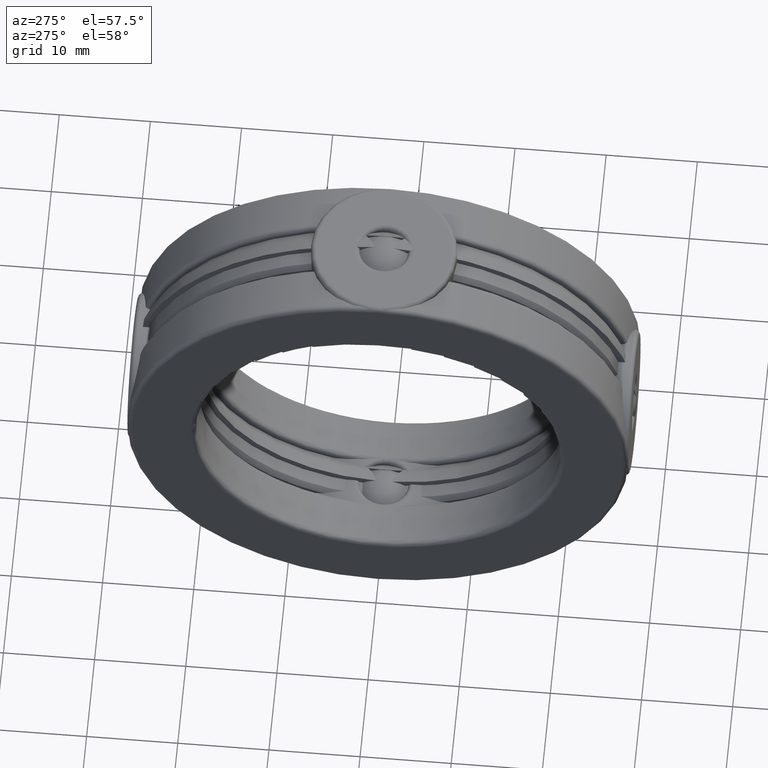
[diagram: clean part render]
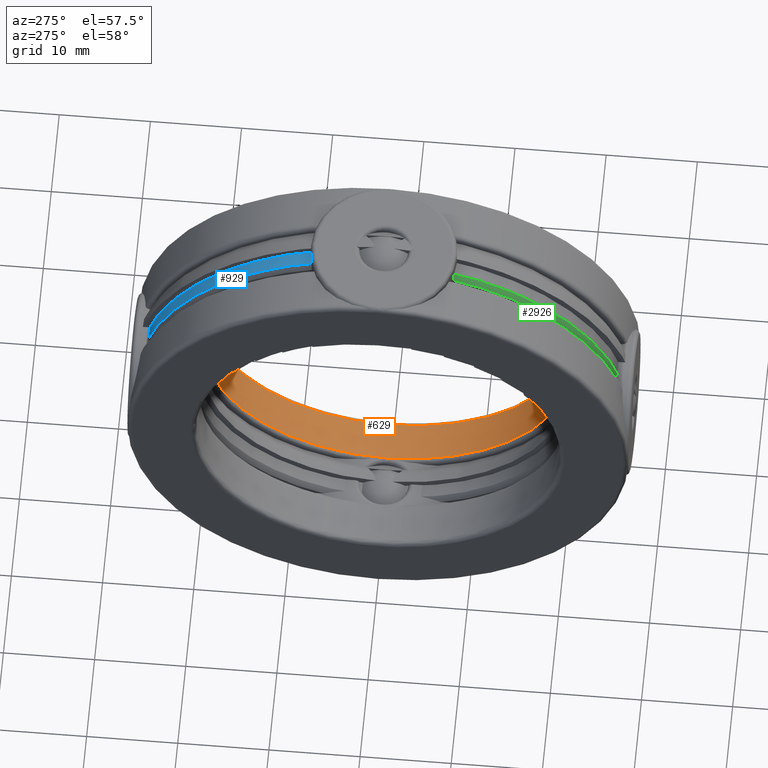
[diagram: same view with three faces highlighted in distinct colors, each labeled with its STEP entity id]
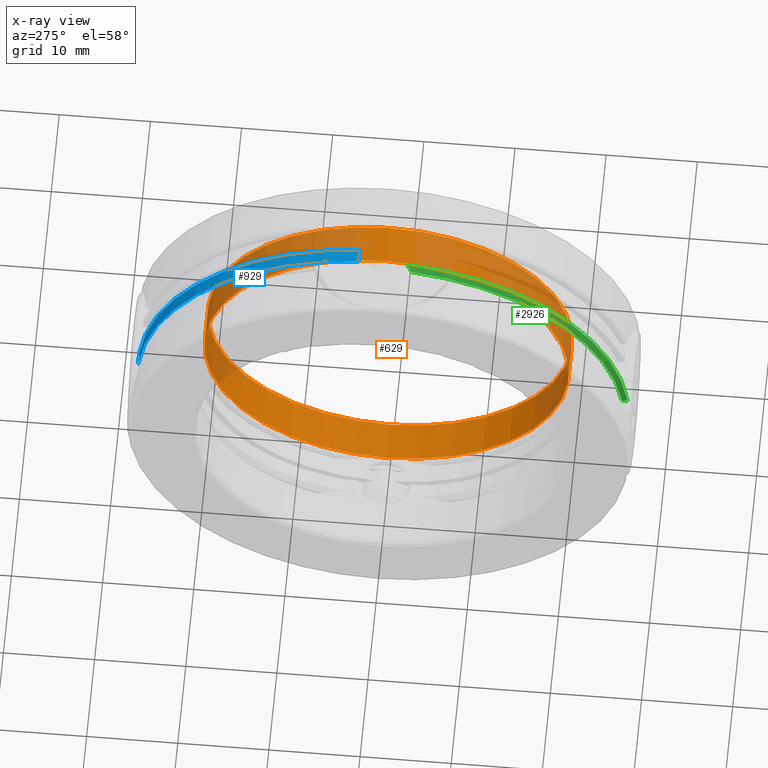
[diagram: x-ray of the same camera — body ghosted, the three highlighted faces saturated]
A machine part, auxiliary view with three faces highlighted in distinct colors.
The next image is the same camera in x-ray (body ghosted, the three faces saturated) — at least one of them is partly hidden behind the body in this view.
Their STEP definitions:

[orange] entity #629 — the highlighted cylindrical surface (bore or boss wall) has radius 20.0025 mm, axis along (-1, -0, -0).
#31 = DIRECTION ( 'NONE',  ( 0.0000000000000000000, 0.0000000000000000000, 1.000000000000000000 ) ) ;
#238 = CARTESIAN_POINT ( 'NONE',  ( 0.2950000000000006000, 0.0000000000000000000, 0.0000000000000000000 ) ) ;
#445 = EDGE_LOOP ( 'NONE', ( #1779 ) ) ;
#463 = CIRCLE ( 'NONE', #2258, 0.7874999999999999800 ) ;
#524 = DIRECTION ( 'NONE',  ( -1.000000000000000000, -0.0000000000000000000, -0.0000000000000000000 ) ) ;
#538 = DIRECTION ( 'NONE',  ( 0.0000000000000000000, 0.0000000000000000000, 1.000000000000000000 ) ) ;
#627 = DIRECTION ( 'NONE',  ( 0.0000000000000000000, 0.0000000000000000000, 1.000000000000000000 ) ) ;
#629 = ADVANCED_FACE ( 'NONE', ( #1318, #2789 ), #742, .F. ) ;
#742 = CYLINDRICAL_SURFACE ( 'NONE', #2857, 0.7874999999999999800 ) ;
#751 = CARTESIAN_POINT ( 'NONE',  ( 0.0000000000000000000, 0.0000000000000000000, 0.0000000000000000000 ) ) ;
#1177 = VERTEX_POINT ( 'NONE', #1813 ) ;
#1318 = FACE_OUTER_BOUND ( 'NONE', #445, .T. ) ;
#1532 = CARTESIAN_POINT ( 'NONE',  ( 0.1250021000000005300, 0.0000000000000000000, 0.0000000000000000000 ) ) ;
#1653 = EDGE_CURVE ( 'NONE', #2914, #2914, #463, .T. ) ;
#1771 = DIRECTION ( 'NONE',  ( -1.000000000000000000, -0.0000000000000000000, -0.0000000000000000000 ) ) ;
#1779 = ORIENTED_EDGE ( 'NONE', *, *, #1653, .T. ) ;
#1783 = CARTESIAN_POINT ( 'NONE',  ( 0.1250021000000005300, 0.0000000000000000000, 0.7874999999999999800 ) ) ;
#1813 = CARTESIAN_POINT ( 'NONE',  ( 0.2950000000000006000, 0.0000000000000000000, 0.7874999999999999800 ) ) ;
#1819 = CIRCLE ( 'NONE', #2628, 0.7874999999999999800 ) ;
#2240 = DIRECTION ( 'NONE',  ( -1.000000000000000000, -0.0000000000000000000, -0.0000000000000000000 ) ) ;
#2258 = AXIS2_PLACEMENT_3D ( 'NONE', #1532, #1771, #31 ) ;
#2325 = EDGE_CURVE ( 'NONE', #1177, #1177, #1819, .T. ) ;
#2532 = ORIENTED_EDGE ( 'NONE', *, *, #2325, .F. ) ;
#2628 = AXIS2_PLACEMENT_3D ( 'NONE', #238, #2240, #627 ) ;
#2789 = FACE_OUTER_BOUND ( 'NONE', #2853, .T. ) ;
#2853 = EDGE_LOOP ( 'NONE', ( #2532 ) ) ;
#2857 = AXIS2_PLACEMENT_3D ( 'NONE', #751, #524, #538 ) ;
#2914 = VERTEX_POINT ( 'NONE', #1783 ) ;

[blue] entity #929 — the highlighted cylindrical surface (partial cylindrical patch) has radius 26.9875 mm, axis along (-1, -0, -0).
#6 = EDGE_CURVE ( 'NONE', #2019, #2568, #109, .T. ) ;
#17 = DIRECTION ( 'NONE',  ( -1.000000000000000000, -0.0000000000000000000, -0.0000000000000000000 ) ) ;
#109 = LINE ( 'NONE', #443, #1802 ) ;
#111 = EDGE_CURVE ( 'NONE', #2568, #2550, #2105, .T. ) ;
#163 = CARTESIAN_POINT ( 'NONE',  ( -0.05875000000000001100, 0.1046707168665492300, 1.057331684491977600 ) ) ;
#210 = AXIS2_PLACEMENT_3D ( 'NONE', #1421, #410, #3127 ) ;
#234 = EDGE_CURVE ( 'NONE', #2550, #2701, #2408, .T. ) ;
#390 = CARTESIAN_POINT ( 'NONE',  ( 0.0000000000000000000, 0.1046707168665485100, 1.057331684491977600 ) ) ;
#410 = DIRECTION ( 'NONE',  ( -1.000000000000000000, -0.0000000000000000000, -0.0000000000000000000 ) ) ;
#431 = DIRECTION ( 'NONE',  ( 0.0000000000000000000, 0.0000000000000000000, 1.000000000000000000 ) ) ;
#443 = CARTESIAN_POINT ( 'NONE',  ( -0.02937500000000000500, 0.1046707168665493000, 1.057331684491977600 ) ) ;
#776 = CARTESIAN_POINT ( 'NONE',  ( -0.05875000000000001100, 1.057331684491978700, 0.1046707168665382800 ) ) ;
#801 = AXIS2_PLACEMENT_3D ( 'NONE', #1268, #17, #1480 ) ;
#929 = ADVANCED_FACE ( 'NONE', ( #2332 ), #1711, .T. ) ;
#1114 = CIRCLE ( 'NONE', #210, 1.062500000000000000 ) ;
#1178 = CARTESIAN_POINT ( 'NONE',  ( 0.0000000000000000000, 1.057331684491978700, 0.1046707168665378700 ) ) ;
#1225 = ORIENTED_EDGE ( 'NONE', *, *, #234, .T. ) ;
#1268 = CARTESIAN_POINT ( 'NONE',  ( 0.0000000000000000000, 0.0000000000000000000, 0.0000000000000000000 ) ) ;
#1270 = AXIS2_PLACEMENT_3D ( 'NONE', #3143, #1943, #431 ) ;
#1421 = CARTESIAN_POINT ( 'NONE',  ( -0.05875000000000001100, 0.0000000000000000000, 0.0000000000000000000 ) ) ;
#1480 = DIRECTION ( 'NONE',  ( 0.0000000000000000000, 0.0000000000000000000, 1.000000000000000000 ) ) ;
#1539 = ORIENTED_EDGE ( 'NONE', *, *, #3122, .F. ) ;
#1705 = ORIENTED_EDGE ( 'NONE', *, *, #111, .T. ) ;
#1711 = CYLINDRICAL_SURFACE ( 'NONE', #1270, 1.062500000000000000 ) ;
#1802 = VECTOR ( 'NONE', #2185, 39.37007874015748100 ) ;
#1931 = ORIENTED_EDGE ( 'NONE', *, *, #6, .T. ) ;
#1943 = DIRECTION ( 'NONE',  ( -1.000000000000000000, -0.0000000000000000000, -0.0000000000000000000 ) ) ;
#2019 = VERTEX_POINT ( 'NONE', #163 ) ;
#2105 = CIRCLE ( 'NONE', #801, 1.062500000000000000 ) ;
#2185 = DIRECTION ( 'NONE',  ( 1.000000000000000000, -0.0000000000000000000, 0.0000000000000000000 ) ) ;
#2332 = FACE_OUTER_BOUND ( 'NONE', #2872, .T. ) ;
#2408 = LINE ( 'NONE', #3078, #2492 ) ;
#2492 = VECTOR ( 'NONE', #2763, 39.37007874015748100 ) ;
#2550 = VERTEX_POINT ( 'NONE', #1178 ) ;
#2568 = VERTEX_POINT ( 'NONE', #390 ) ;
#2701 = VERTEX_POINT ( 'NONE', #776 ) ;
#2763 = DIRECTION ( 'NONE',  ( -1.000000000000000000, -0.0000000000000000000, -0.0000000000000000000 ) ) ;
#2872 = EDGE_LOOP ( 'NONE', ( #1931, #1705, #1225, #1539 ) ) ;
#3078 = CARTESIAN_POINT ( 'NONE',  ( -0.02937500000000000500, 1.057331684491978700, 0.1046707168665382100 ) ) ;
#3122 = EDGE_CURVE ( 'NONE', #2019, #2701, #1114, .T. ) ;
#3127 = DIRECTION ( 'NONE',  ( 0.0000000000000000000, 0.0000000000000000000, 1.000000000000000000 ) ) ;
#3143 = CARTESIAN_POINT ( 'NONE',  ( 0.0000000000000000000, 0.0000000000000000000, 0.0000000000000000000 ) ) ;

[green] entity #2926 — the highlighted conical surface has half-angle 45 deg.
#164 = ORIENTED_EDGE ( 'NONE', *, *, #2100, .T. ) ;
#351 = B_SPLINE_CURVE_WITH_KNOTS ( 'NONE', 3,
 ( #3188, #2957, #2703, #1997 ),
 .UNSPECIFIED., .F., .F.,
 ( 4, 4 ),
 ( 3.460593685213387700E-007, 0.0009424222587522962200 ),
 .UNSPECIFIED. ) ;
#360 = ORIENTED_EDGE ( 'NONE', *, *, #2225, .T. ) ;
#417 = EDGE_LOOP ( 'NONE', ( #164, #3197, #360, #1818 ) ) ;
#471 = CIRCLE ( 'NONE', #2765, 1.042500000000000000 ) ;
#520 = CARTESIAN_POINT ( 'NONE',  ( -0.05875000000000001100, -0.1046707168665272100, 1.057331684491979800 ) ) ;
#523 = DIRECTION ( 'NONE',  ( 0.0000000000000000000, 0.0000000000000000000, 1.000000000000000000 ) ) ;
#636 = CARTESIAN_POINT ( 'NONE',  ( -0.07875000000000002800, 0.0000000000000000000, 0.0000000000000000000 ) ) ;
#658 = DIRECTION ( 'NONE',  ( 0.0000000000000000000, 0.0000000000000000000, 1.000000000000000000 ) ) ;
#727 = CARTESIAN_POINT ( 'NONE',  ( -0.07875000000000007000, -0.1263222224675388800, 1.034818315508022600 ) ) ;
#799 = EDGE_CURVE ( 'NONE', #1644, #1117, #471, .T. ) ;
#877 = CARTESIAN_POINT ( 'NONE',  ( -0.05875000000000001100, -1.057331684491978700, 0.1046707168665381600 ) ) ;
#899 = CARTESIAN_POINT ( 'NONE',  ( -0.07875000000000002800, 0.0000000000000000000, 0.0000000000000000000 ) ) ;
#924 = CARTESIAN_POINT ( 'NONE',  ( -0.06491833212923744900, -0.1128628845874553600, 1.050322216163300800 ) ) ;
#1117 = VERTEX_POINT ( 'NONE', #1254 ) ;
#1127 = CARTESIAN_POINT ( 'NONE',  ( -0.07160503517242471100, -0.1200272327254982300, 1.042784760248928600 ) ) ;
#1180 = VERTEX_POINT ( 'NONE', #2320 ) ;
#1254 = CARTESIAN_POINT ( 'NONE',  ( -0.07875000000000007000, -0.1263222224675388800, 1.034818315508022600 ) ) ;
#1500 = CARTESIAN_POINT ( 'NONE',  ( -0.05875000000000001100, 0.0000000000000000000, 0.0000000000000000000 ) ) ;
#1634 = EDGE_CURVE ( 'NONE', #1940, #1180, #1792, .T. ) ;
#1644 = VERTEX_POINT ( 'NONE', #2769 ) ;
#1656 = DIRECTION ( 'NONE',  ( -1.000000000000000000, -0.0000000000000000000, -0.0000000000000000000 ) ) ;
#1689 = FACE_OUTER_BOUND ( 'NONE', #417, .T. ) ;
#1792 = CIRCLE ( 'NONE', #1900, 1.062500000000000000 ) ;
#1818 = ORIENTED_EDGE ( 'NONE', *, *, #799, .F. ) ;
#1900 = AXIS2_PLACEMENT_3D ( 'NONE', #1500, #2278, #523 ) ;
#1940 = VERTEX_POINT ( 'NONE', #877 ) ;
#1997 = CARTESIAN_POINT ( 'NONE',  ( -0.05875000000000001100, -1.057331684491978700, 0.1046707168665381600 ) ) ;
#2011 = CONICAL_SURFACE ( 'NONE', #2491, 1.042500000000000000, 0.7853981633974492800 ) ;
#2100 = EDGE_CURVE ( 'NONE', #1644, #1940, #351, .T. ) ;
#2130 = DIRECTION ( 'NONE',  ( 1.000000000000000000, 0.0000000000000000000, 0.0000000000000000000 ) ) ;
#2225 = EDGE_CURVE ( 'NONE', #1180, #1117, #2359, .T. ) ;
#2278 = DIRECTION ( 'NONE',  ( -1.000000000000000000, -0.0000000000000000000, -0.0000000000000000000 ) ) ;
#2320 = CARTESIAN_POINT ( 'NONE',  ( -0.05875000000000001100, -0.1046707168665272100, 1.057331684491979800 ) ) ;
#2359 = B_SPLINE_CURVE_WITH_KNOTS ( 'NONE', 3,
 ( #520, #924, #1127, #727 ),
 .UNSPECIFIED., .F., .F.,
 ( 4, 4 ),
 ( 4.008750425783719800E-007, 0.0009424770744263517400 ),
 .UNSPECIFIED. ) ;
#2491 = AXIS2_PLACEMENT_3D ( 'NONE', #636, #2130, #3086 ) ;
#2703 = CARTESIAN_POINT ( 'NONE',  ( -0.06491833212923733800, -1.050322216163299700, 0.1128628845874664300 ) ) ;
#2765 = AXIS2_PLACEMENT_3D ( 'NONE', #899, #1656, #658 ) ;
#2769 = CARTESIAN_POINT ( 'NONE',  ( -0.07875000000000007000, -1.034818315508021300, 0.1263222224675497300 ) ) ;
#2926 = ADVANCED_FACE ( 'NONE', ( #1689 ), #2011, .T. ) ;
#2957 = CARTESIAN_POINT ( 'NONE',  ( -0.07160503517242469700, -1.042784760248927300, 0.1200272327255091800 ) ) ;
#3086 = DIRECTION ( 'NONE',  ( 0.0000000000000000000, 0.0000000000000000000, -1.000000000000000000 ) ) ;
#3188 = CARTESIAN_POINT ( 'NONE',  ( -0.07875000000000007000, -1.034818315508021300, 0.1263222224675497300 ) ) ;
#3197 = ORIENTED_EDGE ( 'NONE', *, *, #1634, .T. ) ;